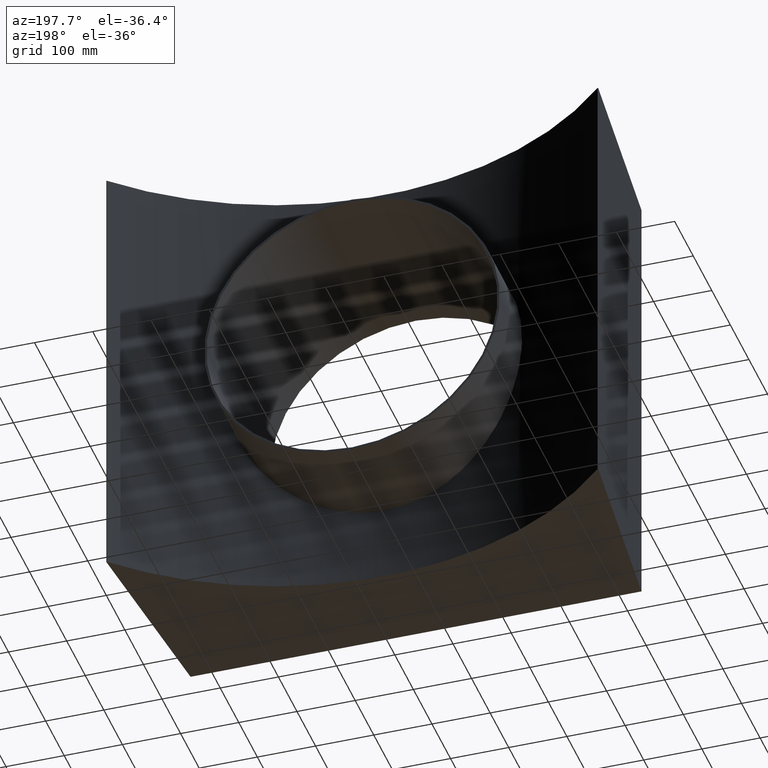
[diagram: clean part render]
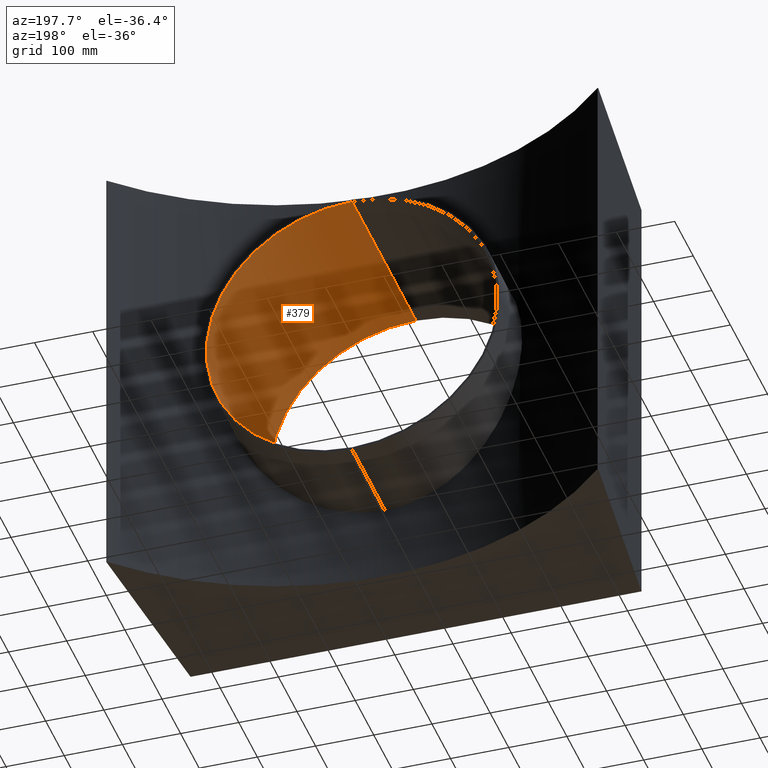
[diagram: same view with one face highlighted and labeled with its STEP entity id]
A machine part, auxiliary view. The second image highlights one B-rep face of the part: STEP entity #379.
In plain terms, the highlighted cylindrical surface (partial cylindrical patch) has radius 250 mm, axis along (0, -1, -0).
Its self-contained STEP definition (entity closure, byte-faithful):
#12 = DIRECTION ( 'NONE',  ( 0.0000000000000000000, 1.000000000000000000, 1.224646799147353454E-16 ) ) ;
#84 = EDGE_CURVE ( 'NONE', #909, #505, #767, .T. ) ;
#105 = VECTOR ( 'NONE', #918, 1000.000000000000000 ) ;
#123 = EDGE_CURVE ( 'NONE', #359, #505, #943, .T. ) ;
#165 = CARTESIAN_POINT ( 'NONE',  ( 0.0000000000000000000, -2.860594363054916521E-15, 249.9999999999999716 ) ) ;
#170 = FACE_OUTER_BOUND ( 'NONE', #720, .T. ) ;
#206 = ORIENTED_EDGE ( 'NONE', *, *, #84, .T. ) ;
#244 = ORIENTED_EDGE ( 'NONE', *, *, #123, .F. ) ;
#249 = EDGE_CURVE ( 'NONE', #333, #909, #371, .T. ) ;
#299 = CARTESIAN_POINT ( 'NONE',  ( 0.0000000000000000000, -345.0000000000000000, 249.9999999999999432 ) ) ;
#302 = CARTESIAN_POINT ( 'NONE',  ( 3.061616997868383753E-14, -344.9999999999998863, -250.0000000000000568 ) ) ;
#323 = CARTESIAN_POINT ( 'NONE',  ( 0.0000000000000000000, -3.061616997868383753E-14, 250.0000000000000000 ) ) ;
#333 = VERTEX_POINT ( 'NONE', #299 ) ;
#338 = EDGE_CURVE ( 'NONE', #333, #359, #456, .T. ) ;
#359 = VERTEX_POINT ( 'NONE', #302 ) ;
#371 = LINE ( 'NONE', #323, #105 ) ;
#376 = DIRECTION ( 'NONE',  ( 0.0000000000000000000, -2.220446049250313081E-16, 1.000000000000000000 ) ) ;
#379 = ADVANCED_FACE ( 'NONE', ( #170 ), #454, .F. ) ;
#383 = AXIS2_PLACEMENT_3D ( 'NONE', #687, #12, #613 ) ;
#387 = ORIENTED_EDGE ( 'NONE', *, *, #249, .T. ) ;
#402 = DIRECTION ( 'NONE',  ( 0.0000000000000000000, 1.000000000000000000, 1.224646799147353454E-16 ) ) ;
#417 = AXIS2_PLACEMENT_3D ( 'NONE', #843, #525, #376 ) ;
#440 = VECTOR ( 'NONE', #566, 1000.000000000000000 ) ;
#454 = CYLINDRICAL_SURFACE ( 'NONE', #383, 250.0000000000000000 ) ;
#456 = CIRCLE ( 'NONE', #417, 250.0000000000000000 ) ;
#505 = VERTEX_POINT ( 'NONE', #791 ) ;
#525 = DIRECTION ( 'NONE',  ( 0.0000000000000000000, 1.000000000000000000, 1.224646799147353454E-16 ) ) ;
#566 = DIRECTION ( 'NONE',  ( 0.0000000000000000000, 1.000000000000000000, 1.224646799147353454E-16 ) ) ;
#588 = AXIS2_PLACEMENT_3D ( 'NONE', #725, #402, #877 ) ;
#598 = ORIENTED_EDGE ( 'NONE', *, *, #338, .F. ) ;
#613 = DIRECTION ( 'NONE',  ( 0.0000000000000000000, -1.224646799147353454E-16, 1.000000000000000000 ) ) ;
#627 = CARTESIAN_POINT ( 'NONE',  ( 3.061616997868383121E-14, 3.061616997868383753E-14, -250.0000000000000000 ) ) ;
#687 = CARTESIAN_POINT ( 'NONE',  ( 0.0000000000000000000, 0.0000000000000000000, 0.0000000000000000000 ) ) ;
#720 = EDGE_LOOP ( 'NONE', ( #244, #598, #387, #206 ) ) ;
#725 = CARTESIAN_POINT ( 'NONE',  ( 0.0000000000000000000, 2.775557561562891351E-14, 0.0000000000000000000 ) ) ;
#767 = CIRCLE ( 'NONE', #588, 249.9999999999999716 ) ;
#791 = CARTESIAN_POINT ( 'NONE',  ( 3.061616997868382490E-14, 5.837174559431275104E-14, -249.9999999999999716 ) ) ;
#843 = CARTESIAN_POINT ( 'NONE',  ( 0.0000000000000000000, -344.9999999999999432, -4.163336342344337027E-14 ) ) ;
#877 = DIRECTION ( 'NONE',  ( 0.0000000000000000000, -1.224646799147353454E-16, 1.000000000000000000 ) ) ;
#909 = VERTEX_POINT ( 'NONE', #165 ) ;
#918 = DIRECTION ( 'NONE',  ( 0.0000000000000000000, 1.000000000000000000, 1.224646799147353454E-16 ) ) ;
#943 = LINE ( 'NONE', #627, #440 ) ;